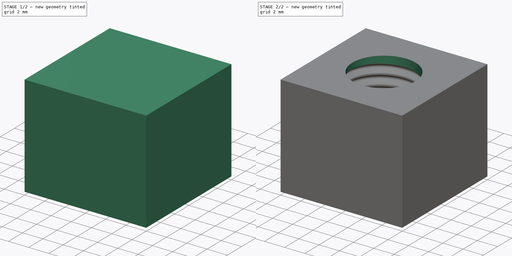
[diagram: build sequence overview — one tinted view per stage of 2, left to right]
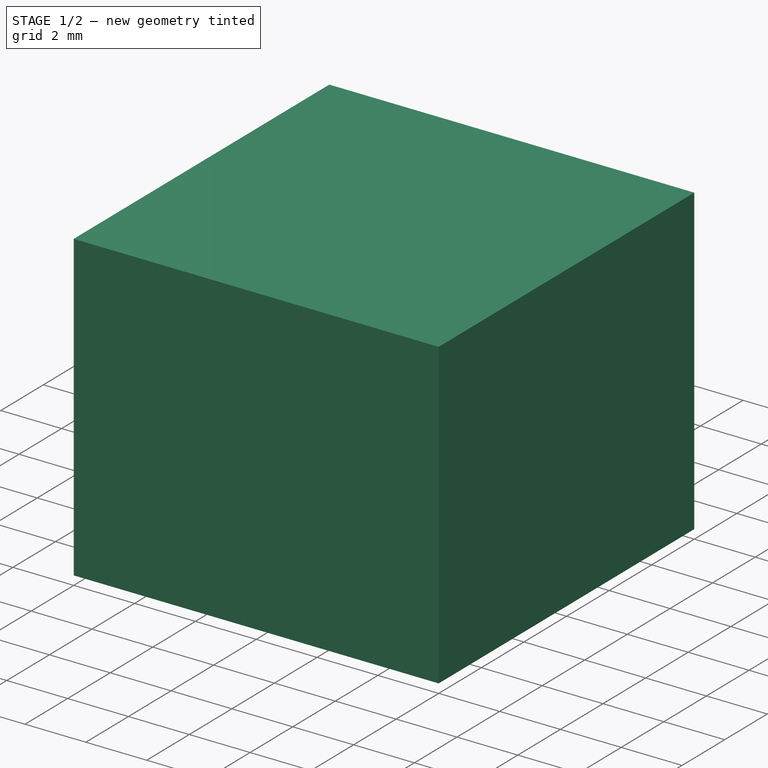
[diagram: stage 1 of 2 — iso view after this stage's code; geometry added in this stage tinted green]
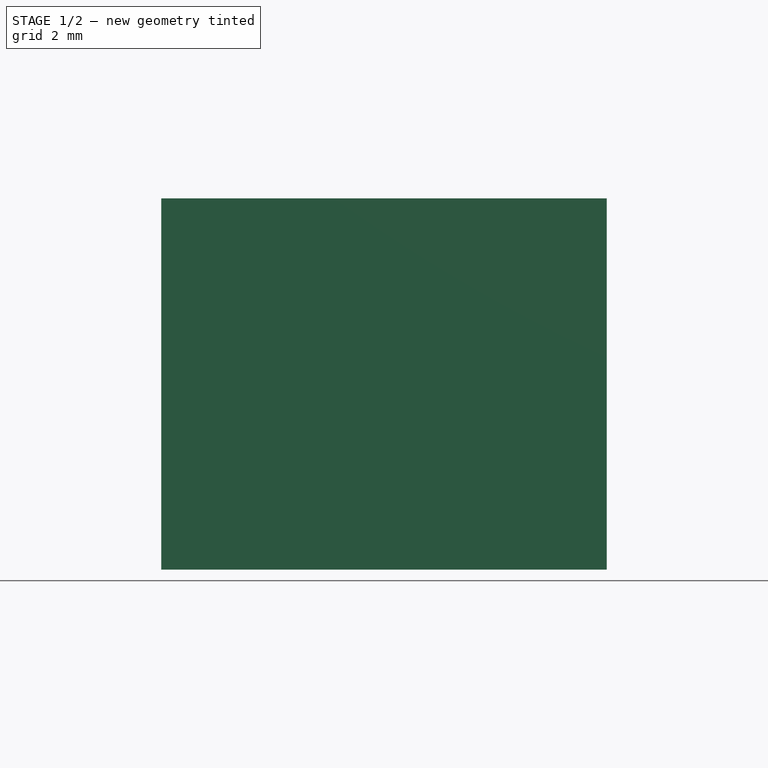
[diagram: stage 1 of 2 — front view after this stage's code; geometry added in this stage tinted green]
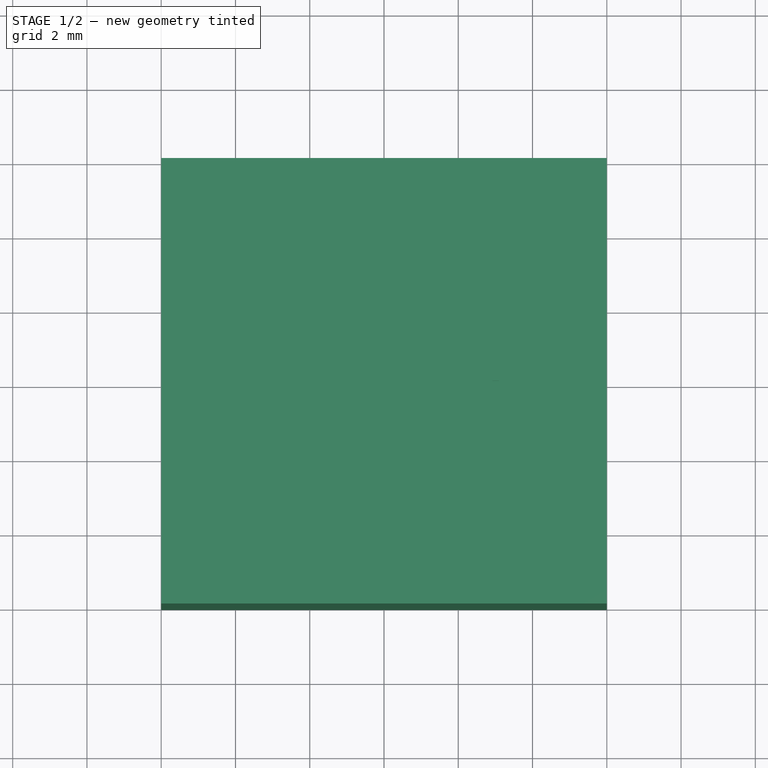
[diagram: stage 1 of 2 — top view after this stage's code; geometry added in this stage tinted green]
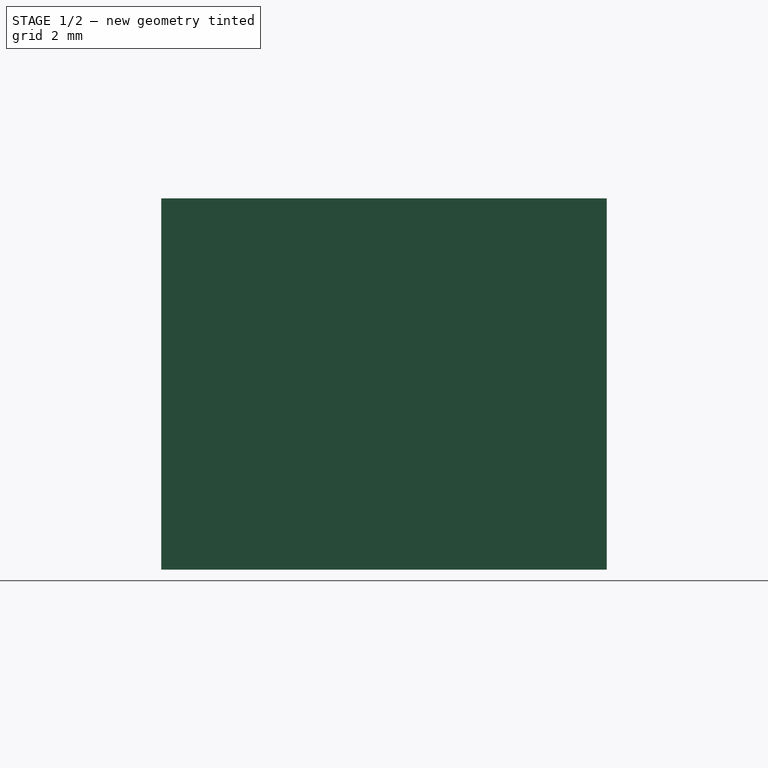
[diagram: stage 1 of 2 — right view after this stage's code; geometry added in this stage tinted green]
FCSTD DOCUMENT  (FreeCAD 0.19R24291 (Git))
Label: M7WW_Thread
License: All rights reserved
LicenseURL: http://en.wikipedia.org/wiki/All_rights_reserved
objects: Sketcher::SketchObject×3, PartDesign::Pad×1, PartDesign::SubtractiveHelix×1, PartDesign::Pocket×1, PartDesign::Body×1
note: 10 computed .brp shape members not serialized (recipe doc carries the construction recipe); baked Part::Feature solids carry a one-line shape summary decoded from their .brp

FEATURE [Sketcher::SketchObject] Sketch
  AttachmentOffset = pos=(0,-1,0) rot=(0,0,1;0rad)
  FullyConstrained = true
  MapMode = 5
  Placement = pos=(0,2e-16,-1) rot=(1,0,0;1.5708rad)
  Support = -> [XZ_Plane]
  sketch-geometry (15):
    g0: LineSegment StartX=2.9627 StartY=1 StartZ=0 EndX=3.7373 EndY=0.5 EndZ=0
    g1: LineSegment StartX=3.7373 StartY=0.5 StartZ=0 EndX=2.9627 EndY=2e-16 EndZ=0
    g2: LineSegment StartX=2.9627 StartY=1 StartZ=0 EndX=2.9627 EndY=0 EndZ=0
    g3: ArcOfCircle CenterX=3.2627 CenterY=1 CenterZ=0 NormalX=0 NormalY=0 NormalZ=1 AngleXU=0 Radius=0.162696 StartAngle=3.14159 EndAngle=4.13919
    g4: ArcOfCircle CenterX=3.4373 CenterY=0.5 CenterZ=0 NormalX=0 NormalY=0 NormalZ=1 AngleXU=0 Radius=0.162696 StartAngle=5.28559 EndAngle=7.28078
    g5: ArcOfCircle CenterX=3.2627 CenterY=0 CenterZ=0 NormalX=0 NormalY=0 NormalZ=1 AngleXU=0 Radius=0.162696 StartAngle=2.144 EndAngle=3.14159
    g6: LineSegment StartX=3.17446 StartY=0.136692 StartZ=0 EndX=3.52554 EndY=0.363308 EndZ=0
    g7: LineSegment StartX=3.52554 StartY=0.636692 StartZ=0 EndX=3.17446 EndY=0.863308 EndZ=0
    g8: LineSegment StartX=0 StartY=1 StartZ=0 EndX=3.1 EndY=1 EndZ=0
    g9: LineSegment StartX=3.1 StartY=0 StartZ=0 EndX=0 EndY=0 EndZ=0
    g10: LineSegment StartX=0 StartY=0 StartZ=0 EndX=0 EndY=1 EndZ=0
    g11: LineSegment StartX=3.2627 StartY=0 StartZ=0 EndX=3.2627 EndY=1 EndZ=0
    g12: LineSegment StartX=3.4373 StartY=0.5 StartZ=0 EndX=3.7373 EndY=0.5 EndZ=0
    g13: LineSegment StartX=3.2627 StartY=1 StartZ=0 EndX=2.9627 EndY=1 EndZ=0
    g14: LineSegment StartX=3.6 StartY=0 StartZ=0 EndX=3.6 EndY=0.5 EndZ=0
  constraints (48):
    c: Equal(g1,g0)
    c: Coincident(g0,g1)
    c: Coincident(g2,g0)
    c: Coincident(g2,g1)
    c: Vertical(g2)
    c: PointOnObject(g1,g-1)
    c: PointOnObject(g3,g0)
    c: PointOnObject(g4,g0)
    c: PointOnObject(g4,g1)
    c: Tangent(g3,g0)
    c: Tangent(g4,g0)
    c: Tangent(g1,g4)
    c: PointOnObject(g5,g1)
    c: Tangent(g5,g1)
    c: Coincident(g6,g5)
    c: Coincident(g6,g4)
    c: Coincident(g7,g4)
    c: Coincident(g7,g3)
    c: Coincident(g9,g10)
    c: Coincident(g10,g8)
    c: Horizontal(g8)
    c: Horizontal(g9)
    c: Vertical(g10)
    c: Coincident(g8,g3)
    c: Coincident(g9,g5)
    c: Coincident(g9,g-1)
    c: PointOnObject(g0,g8)
    c: Coincident(g11,g5)
    c: Coincident(g11,g3)
    c: PointOnObject(g5,g-1)
    c: Vertical(g11)
    c: DistanceX(g0,g0) = 0.774608  'RefH'
    c: DistanceX(g4,g0) = 0.3
    c: Coincident(g12,g4)
    c: Coincident(g12,g0)
    c: Coincident(g13,g3)
    c: Coincident(g13,g0)
    c: Horizontal(g13)
    c: Equal(g13,g12)
    c: PointOnObject(g14,g-1)
    c: PointOnObject(g14,g4)
    c: Vertical(g14)
    c: Tangent(g14,g4)
    c: DistanceX(g14) = 3.6
    c: DistanceY(g10,g10) = 1
    c: DistanceX(g9,g9) = 3.1  'Rmin'
    c: DistanceX(g3,g14) = 0.5
    c: Angle(g7,g6) = 1.14639
FEATURE [Sketcher::SketchObject] Sketch001
  FullyConstrained = true
  MapMode = 5
  Support = -> [XY_Plane]
  sketch-geometry (4):
    g0: LineSegment StartX=-6 StartY=6 StartZ=0 EndX=6 EndY=6 EndZ=0
    g1: LineSegment StartX=6 StartY=6 StartZ=0 EndX=6 EndY=-6 EndZ=0
    g2: LineSegment StartX=6 StartY=-6 StartZ=0 EndX=-6 EndY=-6 EndZ=0
    g3: LineSegment StartX=-6 StartY=-6 StartZ=0 EndX=-6 EndY=6 EndZ=0
  constraints (11):
    c: Coincident(g0,g1)
    c: Coincident(g1,g2)
    c: Coincident(g2,g3)
    c: Coincident(g3,g0)
    c: Horizontal(g0)
    c: Horizontal(g2)
    c: Vertical(g1)
    c: Vertical(g3)
    c: Symmetric(g2,g0,g-1)
    c: Equal(g0,g1)
    c: DistanceX(g0,g0) = 12
FEATURE [PartDesign::Pad] Pad
  Direction = (1,1,1)
  Length = 10
  Length2 = 100
  Profile = -> Sketch001
  Type = 0
FEATURE [PartDesign::SubtractiveHelix] SubtractiveHelix
  Angle = 0
  Axis = (0,-2e-16,1)
  Base = (0,2e-16,-1)
  BaseFeature = -> Pad
  HasBeenEdited = true
  Height = 10
  LeftHanded = false
  Mode = 0
  Outside = false
  Pitch = 1
  Profile = -> Sketch
  ReferenceAxis = -> Sketch [V_Axis]
  Refine = true
  Turns = 10
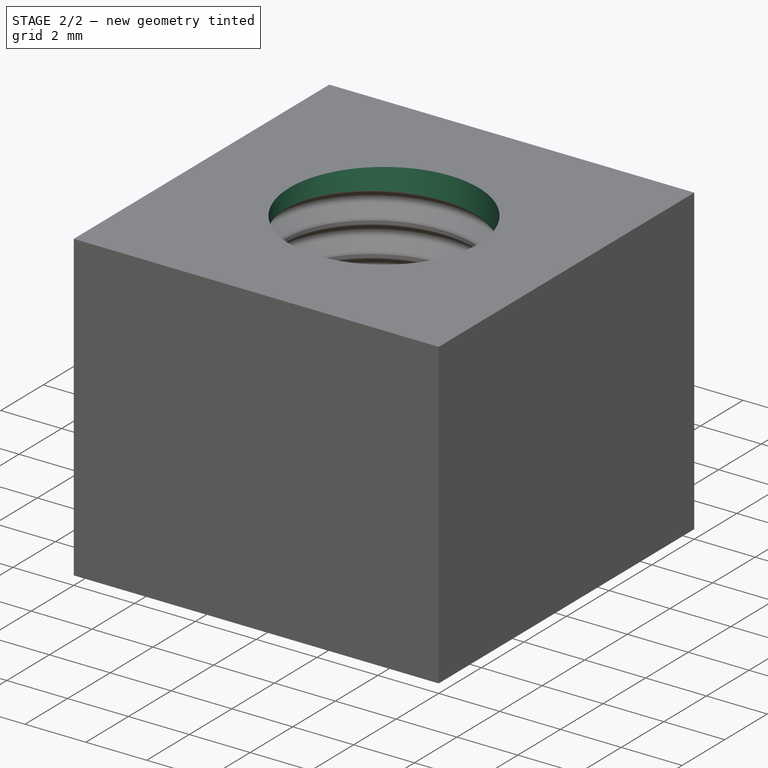
[diagram: stage 2 of 2 — iso view after this stage's code; geometry added in this stage tinted green]
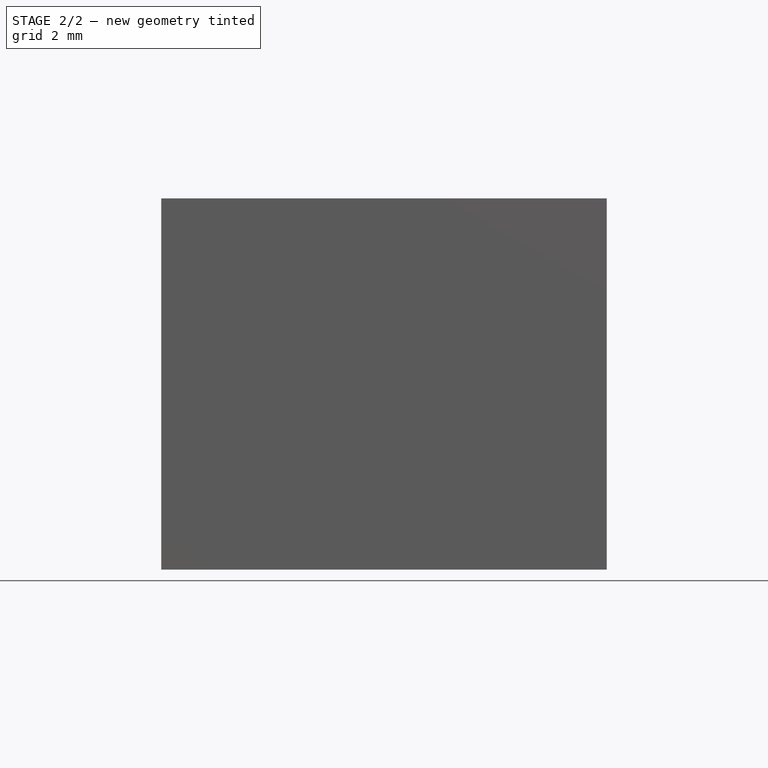
[diagram: stage 2 of 2 — front view after this stage's code; geometry added in this stage tinted green]
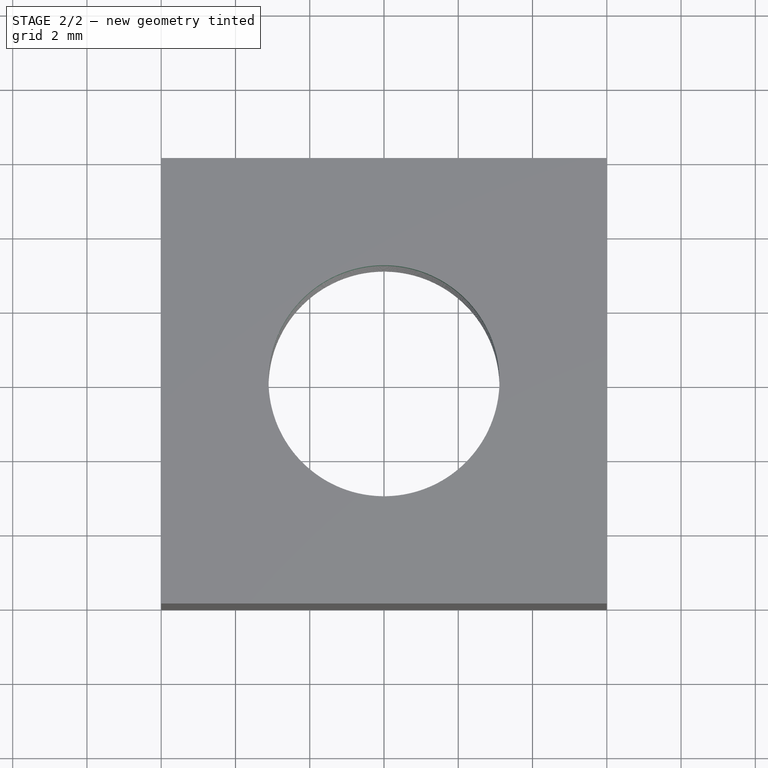
[diagram: stage 2 of 2 — top view after this stage's code; geometry added in this stage tinted green]
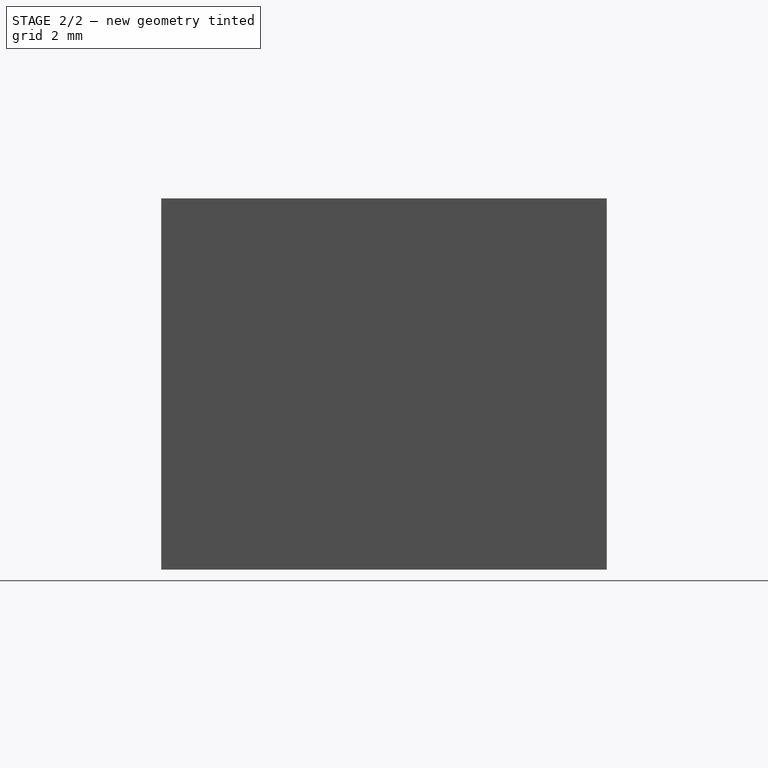
[diagram: stage 2 of 2 — right view after this stage's code; geometry added in this stage tinted green]
FEATURE [Sketcher::SketchObject] Sketch002
  AttachmentOffset = pos=(0,0,10) rot=(0,0,1;0rad)
  FullyConstrained = true
  MapMode = 5
  Placement = pos=(0,0,10) rot=(0,0,1;0rad)
  Support = -> [XY_Plane]
  expr: Constraints[1] = <<Sketch>>.Constraints.Rmin + 0.01mm
  expr: .AttachmentOffset.Base.z = <<Pad>>.Length
  sketch-geometry (1):
    g0: Circle CenterX=0 CenterY=0 CenterZ=0 NormalX=0 NormalY=0 NormalZ=1 AngleXU=0 Radius=3.11
  constraints (2):
    c: Coincident(g0,g-1)
    c: Radius(g0) = 3.11
FEATURE [PartDesign::Pocket] Pocket
  BaseFeature = -> SubtractiveHelix
  Length = 5
  Length2 = 100
  Profile = -> Sketch002
  Type = 1
FEATURE [PartDesign::Body] Body
  Group = -> [Pad,Sketch,SubtractiveHelix,Sketch001,Sketch002,Pocket]
  Origin = -> Origin
  Tip = -> Pocket
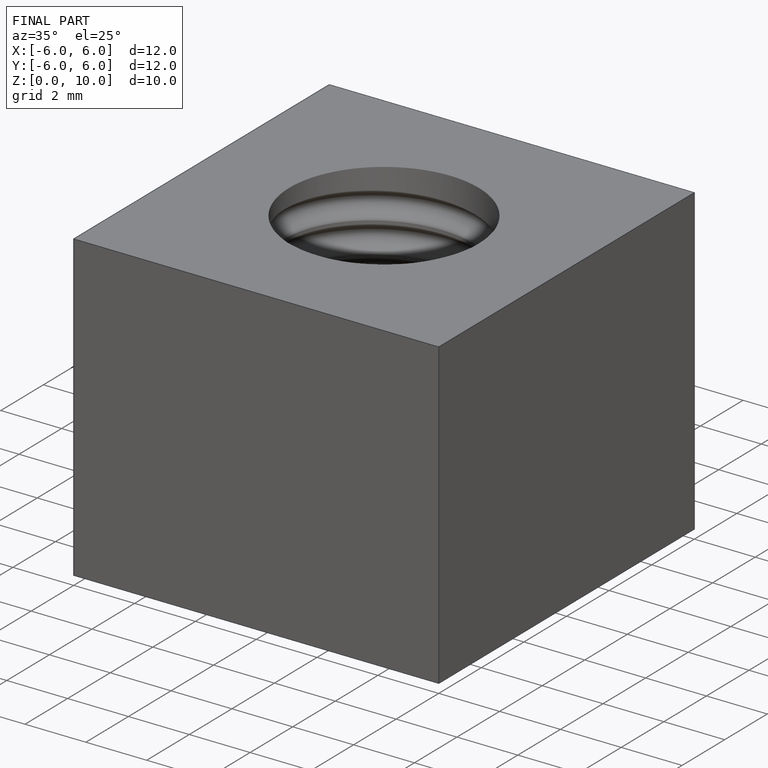
[diagram: finished part — iso view with bounding-box wireframe]
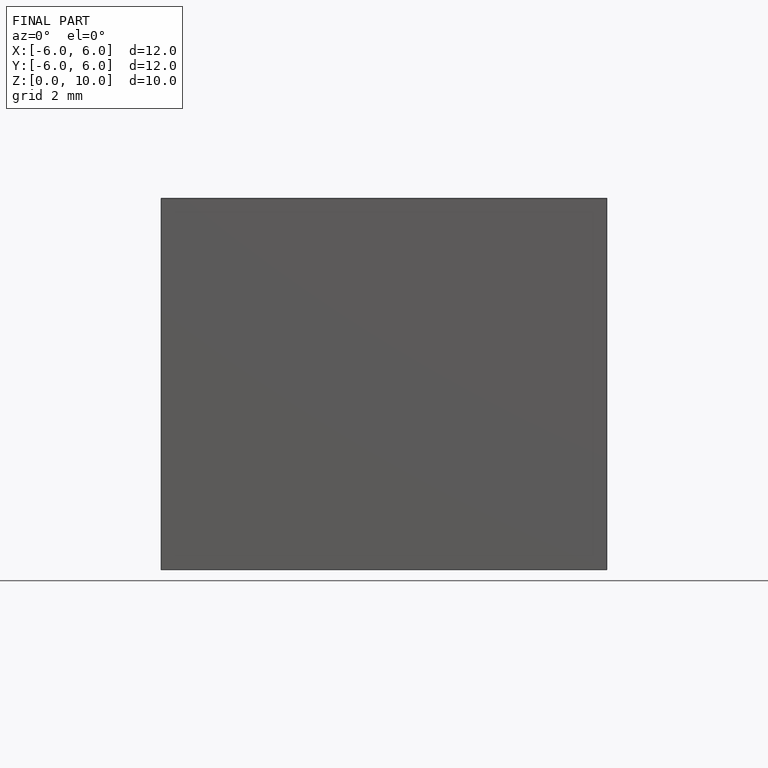
[diagram: finished part — front view with bounding-box wireframe]
